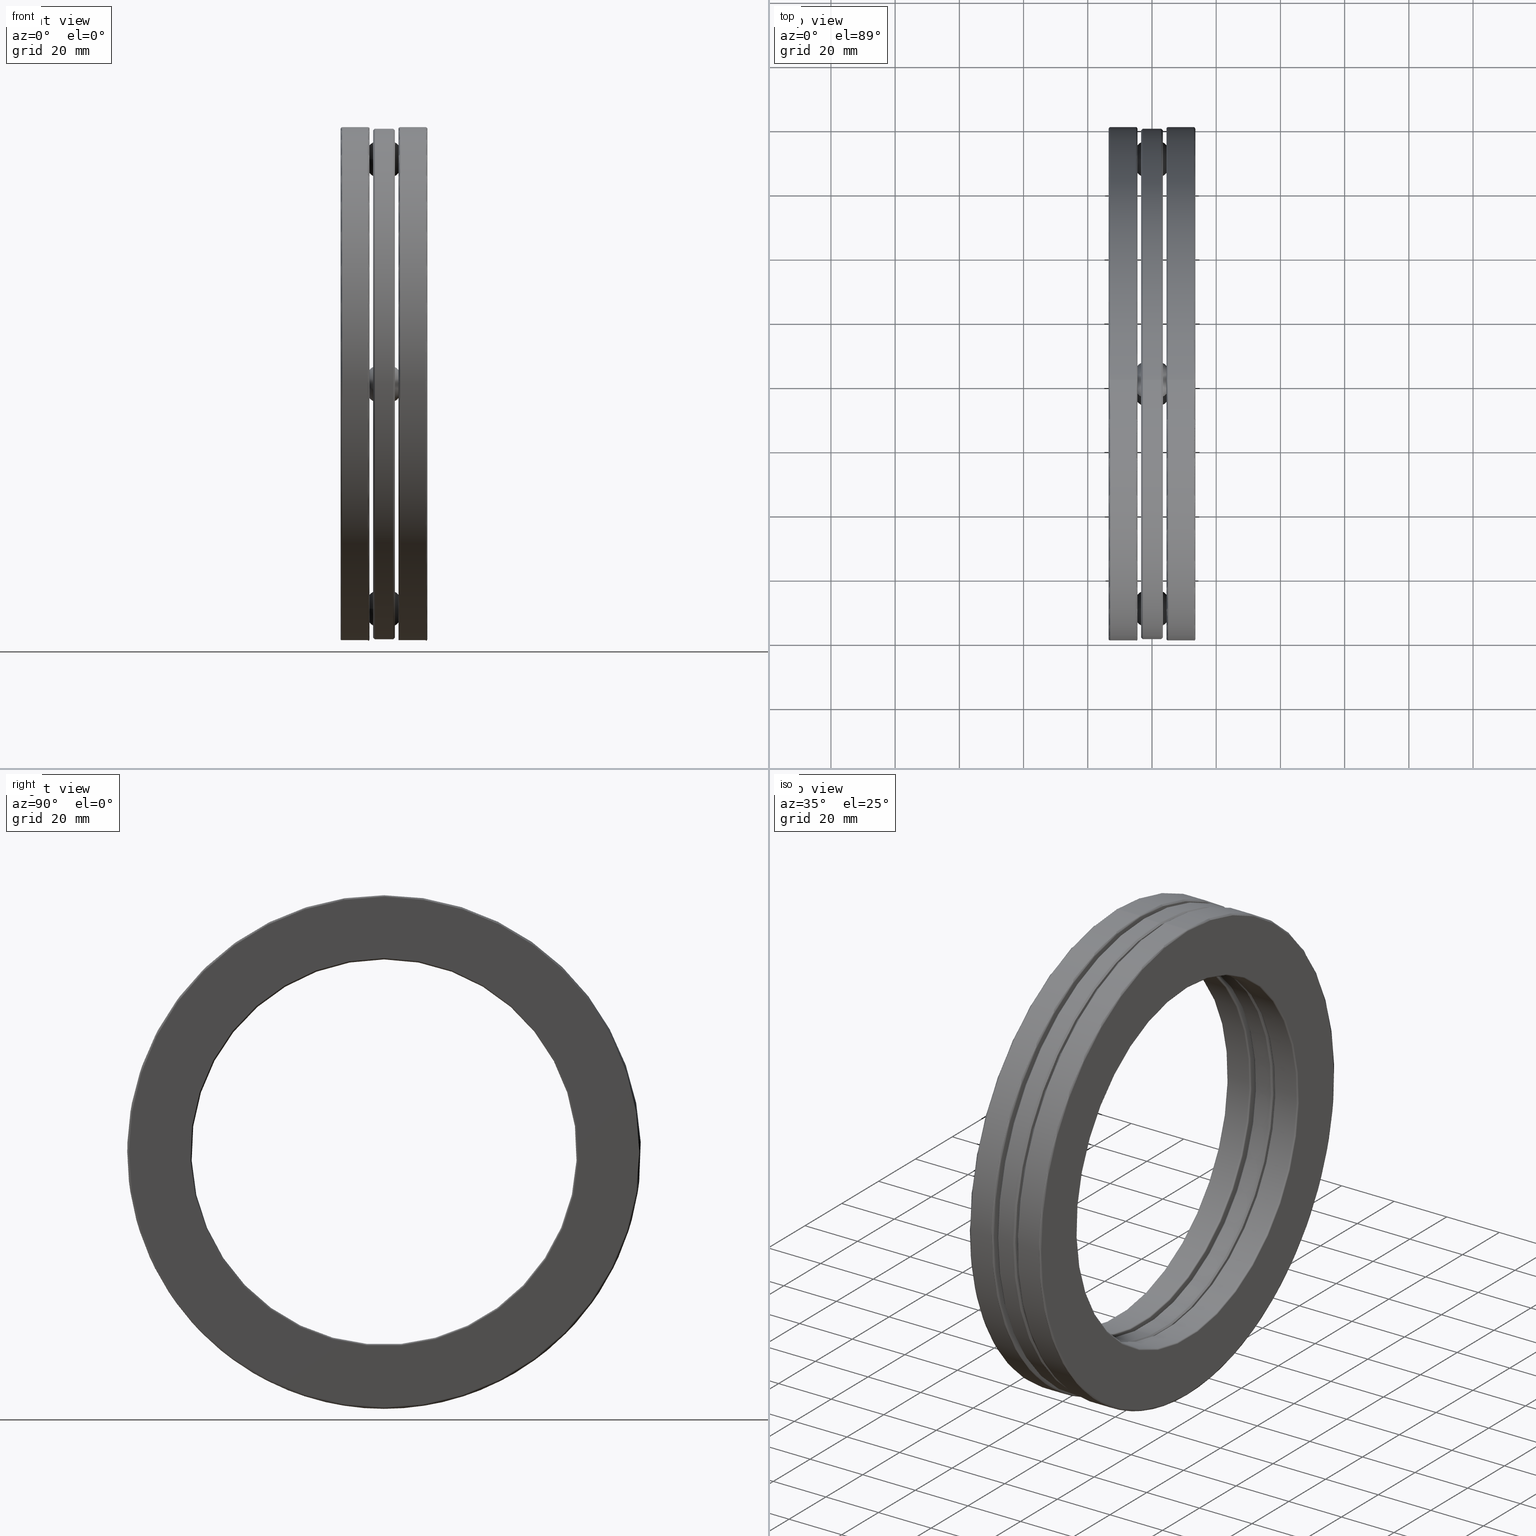
[diagram: canonical four-view strip — front | top / right | iso, engineering-drawing reading convention]
A machine part, canonical four-view strip (front | top / right | iso — engineering-drawing reading convention). The complete STEP part file that produces these views, byte-faithful:
ISO-10303-21;
HEADER;
FILE_DESCRIPTION (( 'STEP AP203' ),
    '1' );
FILE_NAME ('2924-ABB.step',
    '2017-03-07T16:43:17',
    ( '' ),
    ( '' ),
    'SwSTEP 2.0',
    'SolidWorks 2017',
    '' );
FILE_SCHEMA (( 'CONFIG_CONTROL_DESIGN' ));
ENDSEC;

DATA;
#1 = ADVANCED_FACE ( 'NONE', ( #789, #763 ), #663, .T. ) ;
#2 = DIRECTION ( 'NONE',  ( 0.0000000000000000000, 0.0000000000000000000, 1.000000000000000000 ) ) ;
#3 = AXIS2_PLACEMENT_3D ( 'NONE', #398, #583, #280 ) ;
#4 = DIRECTION ( 'NONE',  ( 0.0000000000000000000, 0.0000000000000000000, 1.000000000000000000 ) ) ;
#5 = DIRECTION ( 'NONE',  ( 0.0000000000000000000, -1.000000000000000000, 4.285251754767471100E-015 ) ) ;
#6 = EDGE_LOOP ( 'NONE', ( #730 ) ) ;
#7 = CIRCLE ( 'NONE', #71, 2.381999999999999700 ) ;
#8 = CYLINDRICAL_SURFACE ( 'NONE', #475, 0.2550000000000000600 ) ;
#9 = CARTESIAN_POINT ( 'NONE',  ( 0.1971702100000012600, 0.0000000000000000000, 0.0000000000000000000 ) ) ;
#10 = EDGE_LOOP ( 'NONE', ( #380 ) ) ;
#11 = CARTESIAN_POINT ( 'NONE',  ( -0.1328749999999998800, 2.886494909855089900E-014, 2.755750000000000400 ) ) ;
#12 = AXIS2_PLACEMENT_3D ( 'NONE', #392, #194, #202 ) ;
#13 = CARTESIAN_POINT ( 'NONE',  ( 0.0000000000000000000, 0.0000000000000000000, 0.0000000000000000000 ) ) ;
#14 = ORIENTED_EDGE ( 'NONE', *, *, #622, .F. ) ;
#15 = ORIENTED_EDGE ( 'NONE', *, *, #413, .T. ) ;
#16 = ORIENTED_EDGE ( 'NONE', *, *, #603, .T. ) ;
#17 = DATE_AND_TIME ( #285, #361 ) ;
#18 = FACE_BOUND ( 'NONE', #468, .T. ) ;
#19 = VERTEX_POINT ( 'NONE', #235 ) ;
#20 = CARTESIAN_POINT ( 'NONE',  ( -0.1771702099999997700, 0.0000000000000000000, 2.382000000000000100 ) ) ;
#21 = APPROVAL_STATUS ( 'not_yet_approved' ) ;
#22 = DIRECTION ( 'NONE',  ( -1.000000000000000000, -0.0000000000000000000, -0.0000000000000000000 ) ) ;
#23 = LOCAL_TIME ( 11, 43, 17.00000000000000000, #404 ) ;
#24 = FACE_OUTER_BOUND ( 'NONE', #300, .T. ) ;
#25 = VERTEX_POINT ( 'NONE', #531 ) ;
#26 = DATE_TIME_ROLE ( 'classification_date' ) ;
#27 = PLANE ( 'NONE',  #397 ) ;
#28 = EDGE_LOOP ( 'NONE', ( #421 ) ) ;
#29 =( GEOMETRIC_REPRESENTATION_CONTEXT ( 3 ) GLOBAL_UNCERTAINTY_ASSIGNED_CONTEXT ( ( #50 ) ) GLOBAL_UNIT_ASSIGNED_CONTEXT ( ( #589, #227, #420 ) ) REPRESENTATION_CONTEXT ( 'NONE', 'WORKASPACE' ) );
#30 = ORIENTED_EDGE ( 'NONE', *, *, #450, .T. ) ;
#31 = DIRECTION ( 'NONE',  ( 1.000000000000000000, 0.0000000000000000000, 0.0000000000000000000 ) ) ;
#32 = ADVANCED_FACE ( 'NONE', ( #338, #96 ), #165, .F. ) ;
#33 = CARTESIAN_POINT ( 'NONE',  ( -0.1971702099999997300, 0.0000000000000000000, 2.362000000000000100 ) ) ;
#34 = EDGE_CURVE ( 'NONE', #333, #333, #456, .T. ) ;
#35 = EDGE_LOOP ( 'NONE', ( #674 ) ) ;
#36 = CIRCLE ( 'NONE', #189, 2.381999999999999700 ) ;
#37 = FACE_OUTER_BOUND ( 'NONE', #355, .T. ) ;
#38 = ORIENTED_EDGE ( 'NONE', *, *, #695, .F. ) ;
#39 = ADVANCED_FACE ( 'NONE', ( #613, #481 ), #598, .T. ) ;
#40 = MANIFOLD_SOLID_BREP ( 'CirPattern7', #183 ) ;
#41 = AXIS2_PLACEMENT_3D ( 'NONE', #501, #249, #676 ) ;
#42 = CARTESIAN_POINT ( 'NONE',  ( 0.1971702100000012600, 0.0000000000000000000, 0.0000000000000000000 ) ) ;
#43 = AXIS2_PLACEMENT_3D ( 'NONE', #13, #641, #72 ) ;
#44 = DATE_AND_TIME ( #229, #744 ) ;
#45 = FACE_BOUND ( 'NONE', #122, .T. ) ;
#46 = FACE_OUTER_BOUND ( 'NONE', #111, .T. ) ;
#47 = CARTESIAN_POINT ( 'NONE',  ( 0.1771702100000012400, 0.0000000000000000000, 0.0000000000000000000 ) ) ;
#48 = ADVANCED_FACE ( 'NONE', ( #119, #315 ), #130, .F. ) ;
#49 = DIRECTION ( 'NONE',  ( 0.0000000000000000000, 0.0000000000000000000, 1.000000000000000000 ) ) ;
#50 = UNCERTAINTY_MEASURE_WITH_UNIT (LENGTH_MEASURE( 1.000000000000000100E-005 ), #589, 'distance_accuracy_value', 'NONE');
#51 = EDGE_LOOP ( 'NONE', ( #224 ) ) ;
#52 = ADVANCED_FACE ( 'NONE', ( #283, #88 ), #373, .T. ) ;
#53 = DIRECTION ( 'NONE',  ( -1.000000000000000000, -0.0000000000000000000, -0.0000000000000000000 ) ) ;
#54 = CARTESIAN_POINT ( 'NONE',  ( -0.1328749999999998800, 2.755750000000000400, 0.0000000000000000000 ) ) ;
#55 = ORIENTED_EDGE ( 'NONE', *, *, #609, .F. ) ;
#56 = CIRCLE ( 'NONE', #377, 0.2550000000000000600 ) ;
#57 = PERSON_AND_ORGANIZATION ( #247, #150 ) ;
#58 = FACE_OUTER_BOUND ( 'NONE', #773, .T. ) ;
#59 = EDGE_LOOP ( 'NONE', ( #169 ) ) ;
#60 = AXIS2_PLACEMENT_3D ( 'NONE', #378, #736, #813 ) ;
#61 = ADVANCED_FACE ( 'NONE', ( #203, #449 ), #530, .F. ) ;
#62 = DIRECTION ( 'NONE',  ( -1.000000000000000000, -0.0000000000000000000, -0.0000000000000000000 ) ) ;
#63 = EDGE_LOOP ( 'NONE', ( #157 ) ) ;
#64 = ORIENTED_EDGE ( 'NONE', *, *, #547, .F. ) ;
#65 = EDGE_CURVE ( 'NONE', #168, #168, #607, .T. ) ;
#66 = ADVANCED_FACE ( 'NONE', ( ), #242, .T. ) ;
#67 = MANIFOLD_SOLID_BREP ( 'CirPattern4[2]', #780 ) ;
#68 = FACE_OUTER_BOUND ( 'NONE', #178, .T. ) ;
#69 = CARTESIAN_POINT ( 'NONE',  ( -0.5315393700787400800, 2.755750000000000400, 0.0000000000000000000 ) ) ;
#70 = CIRCLE ( 'NONE', #502, 2.381999999999999700 ) ;
#71 = AXIS2_PLACEMENT_3D ( 'NONE', #452, #199, #627 ) ;
#72 = DIRECTION ( 'NONE',  ( 0.0000000000000000000, 0.0000000000000000000, 1.000000000000000000 ) ) ;
#73 = DIRECTION ( 'NONE',  ( 0.0000000000000000000, 0.0000000000000000000, -1.000000000000000000 ) ) ;
#74 = EDGE_LOOP ( 'NONE', ( #387 ) ) ;
#75 = FACE_OUTER_BOUND ( 'NONE', #269, .T. ) ;
#76 = CIRCLE ( 'NONE', #806, 3.129500000000000600 ) ;
#77 = AXIS2_PLACEMENT_3D ( 'NONE', #699, #139, #210 ) ;
#78 = DIRECTION ( 'NONE',  ( 0.0000000000000000000, 0.0000000000000000000, 1.000000000000000000 ) ) ;
#79 = DIRECTION ( 'NONE',  ( 0.0000000000000000000, 0.0000000000000000000, 1.000000000000000000 ) ) ;
#80 = CARTESIAN_POINT ( 'NONE',  ( 0.0000000000000000000, 0.0000000000000000000, 0.0000000000000000000 ) ) ;
#81 = CARTESIAN_POINT ( 'NONE',  ( 0.5115000000000015100, 0.0000000000000000000, 0.0000000000000000000 ) ) ;
#82 = EDGE_LOOP ( 'NONE', ( #556 ) ) ;
#83 = CARTESIAN_POINT ( 'NONE',  ( -0.1328749999999999100, 0.0000000000000000000, 2.402000000000000100 ) ) ;
#84 = AXIS2_PLACEMENT_3D ( 'NONE', #441, #53, #436 ) ;
#85 = DIRECTION ( 'NONE',  ( 0.0000000000000000000, 0.0000000000000000000, 1.000000000000000000 ) ) ;
#86 = APPROVAL_ROLE ( '' ) ;
#87 = CALENDAR_DATE ( 2017, 7, 3 ) ;
#88 = FACE_OUTER_BOUND ( 'NONE', #286, .T. ) ;
#89 = DIRECTION ( 'NONE',  ( 0.0000000000000000000, 0.0000000000000000000, 1.000000000000000000 ) ) ;
#90 = VERTEX_POINT ( 'NONE', #303 ) ;
#91 = EDGE_LOOP ( 'NONE', ( #687 ) ) ;
#92 = AXIS2_PLACEMENT_3D ( 'NONE', #81, #772, #461 ) ;
#93 = CARTESIAN_POINT ( 'NONE',  ( 0.1971702100000012600, 0.0000000000000000000, 3.149500000000000200 ) ) ;
#94 = CARTESIAN_POINT ( 'NONE',  ( 0.5115000000000015100, 0.0000000000000000000, 2.362000000000000100 ) ) ;
#95 = SECURITY_CLASSIFICATION_LEVEL ( 'unclassified' ) ;
#96 = FACE_OUTER_BOUND ( 'NONE', #795, .T. ) ;
#97 = CYLINDRICAL_SURFACE ( 'NONE', #667, 0.2550000000000000600 ) ;
#98 = CALENDAR_DATE ( 2017, 7, 3 ) ;
#99 = DESIGN_CONTEXT ( 'detailed design', #485, 'design' ) ;
#100 = CIRCLE ( 'NONE', #814, 0.2550000000000000600 ) ;
#101 = CARTESIAN_POINT ( 'NONE',  ( -0.5114999999999999500, 0.0000000000000000000, 3.149500000000001100 ) ) ;
#102 = ORIENTED_EDGE ( 'NONE', *, *, #105, .T. ) ;
#103 = AXIS2_PLACEMENT_3D ( 'NONE', #134, #263, #197 ) ;
#104 = ADVANCED_FACE ( 'NONE', ( #24, #757 ), #368, .F. ) ;
#105 = EDGE_CURVE ( 'NONE', #553, #553, #708, .T. ) ;
#106 = CC_DESIGN_DATE_AND_TIME_ASSIGNMENT ( #625, #366, ( #578 ) ) ;
#107 = CARTESIAN_POINT ( 'NONE',  ( 0.1771702100000012400, 0.0000000000000000000, 0.0000000000000000000 ) ) ;
#108 = VERTEX_POINT ( 'NONE', #596 ) ;
#109 = SPHERICAL_SURFACE ( 'NONE', #529, 0.2499999999999998100 ) ;
#110 = FACE_OUTER_BOUND ( 'NONE', #304, .T. ) ;
#111 = EDGE_LOOP ( 'NONE', ( #647 ) ) ;
#112 = EDGE_LOOP ( 'NONE', ( #259 ) ) ;
#113 = DIRECTION ( 'NONE',  ( 0.0000000000000000000, 0.0000000000000000000, -1.000000000000000000 ) ) ;
#114 = AXIS2_PLACEMENT_3D ( 'NONE', #313, #427, #376 ) ;
#115 = DIRECTION ( 'NONE',  ( -1.000000000000000000, -0.0000000000000000000, -0.0000000000000000000 ) ) ;
#116 = DIRECTION ( 'NONE',  ( -1.000000000000000000, -0.0000000000000000000, -0.0000000000000000000 ) ) ;
#117 = APPROVAL ( #543, 'UNSPECIFIED' ) ;
#118 = ADVANCED_FACE ( 'NONE', ( #491, #779 ), #296, .T. ) ;
#119 = FACE_BOUND ( 'NONE', #82, .T. ) ;
#120 = CIRCLE ( 'NONE', #604, 2.382000000000000100 ) ;
#121 = VERTEX_POINT ( 'NONE', #138 ) ;
#122 = EDGE_LOOP ( 'NONE', ( #354 ) ) ;
#123 = DIRECTION ( 'NONE',  ( 0.0000000000000000000, 1.000000000000000000, -1.071312938691867700E-014 ) ) ;
#124 = EDGE_CURVE ( 'NONE', #25, #25, #193, .T. ) ;
#125 = CC_DESIGN_PERSON_AND_ORGANIZATION_ASSIGNMENT ( #567, #593, ( #486 ) ) ;
#126 = ADVANCED_FACE ( 'NONE', ( #819, #151 ), #679, .F. ) ;
#127 = DIRECTION ( 'NONE',  ( -1.000000000000000000, -0.0000000000000000000, -0.0000000000000000000 ) ) ;
#128 = EDGE_LOOP ( 'NONE', ( #267 ) ) ;
#129 = VERTEX_POINT ( 'NONE', #661 ) ;
#130 = CONICAL_SURFACE ( 'NONE', #426, 2.402000000000000100, 0.7853981633974503900 ) ;
#131 = MANIFOLD_SOLID_BREP ( 'Revolve3', #767 ) ;
#132 = ORIENTED_EDGE ( 'NONE', *, *, #642, .F. ) ;
#133 = DIRECTION ( 'NONE',  ( 1.000000000000000000, -0.0000000000000000000, -0.0000000000000000000 ) ) ;
#134 = CARTESIAN_POINT ( 'NONE',  ( -0.1771702099999997700, 0.0000000000000000000, 0.0000000000000000000 ) ) ;
#135 = DIRECTION ( 'NONE',  ( 0.0000000000000000000, 0.0000000000000000000, 1.000000000000000000 ) ) ;
#136 = EDGE_LOOP ( 'NONE', ( #206 ) ) ;
#137 = CIRCLE ( 'NONE', #460, 3.129500000000000600 ) ;
#138 = CARTESIAN_POINT ( 'NONE',  ( 0.1771702100000012400, 0.0000000000000000000, 2.932132302651245100 ) ) ;
#139 = DIRECTION ( 'NONE',  ( -1.000000000000000000, -0.0000000000000000000, -0.0000000000000000000 ) ) ;
#140 = PRODUCT_DEFINITION_FORMATION_WITH_SPECIFIED_SOURCE ( 'ANY', '', #732, .NOT_KNOWN. ) ;
#141 = CARTESIAN_POINT ( 'NONE',  ( -0.1328749999999999100, 0.0000000000000000000, 0.0000000000000000000 ) ) ;
#142 = DIRECTION ( 'NONE',  ( 0.0000000000000000000, 0.0000000000000000000, -1.000000000000000000 ) ) ;
#143 = EDGE_LOOP ( 'NONE', ( #64 ) ) ;
#144 = DIRECTION ( 'NONE',  ( -1.000000000000000000, -0.0000000000000000000, -0.0000000000000000000 ) ) ;
#145 = ORIENTED_EDGE ( 'NONE', *, *, #173, .F. ) ;
#146 = AXIS2_PLACEMENT_3D ( 'NONE', #234, #532, #236 ) ;
#147 = DIRECTION ( 'NONE',  ( 0.0000000000000000000, 0.0000000000000000000, 1.000000000000000000 ) ) ;
#148 = DIRECTION ( 'NONE',  ( -1.000000000000000000, -0.0000000000000000000, -0.0000000000000000000 ) ) ;
#149 = EDGE_LOOP ( 'NONE', ( #817 ) ) ;
#150 = ORGANIZATION ( 'UNSPECIFIED', 'UNSPECIFIED', '' ) ;
#151 = FACE_OUTER_BOUND ( 'NONE', #558, .T. ) ;
#152 = VERTEX_POINT ( 'NONE', #724 ) ;
#153 = EDGE_CURVE ( 'NONE', #121, #121, #262, .T. ) ;
#154 = DIRECTION ( 'NONE',  ( -1.000000000000000000, -0.0000000000000000000, -0.0000000000000000000 ) ) ;
#155 = DIRECTION ( 'NONE',  ( 0.0000000000000000000, 0.0000000000000000000, 1.000000000000000000 ) ) ;
#156 = EDGE_LOOP ( 'NONE', ( #798 ) ) ;
#157 = ORIENTED_EDGE ( 'NONE', *, *, #681, .F. ) ;
#158 = CARTESIAN_POINT ( 'NONE',  ( 0.1328750000000000200, 2.755750000000000400, -0.2550000000000000600 ) ) ;
#159 = DIRECTION ( 'NONE',  ( 0.0000000000000000000, 0.0000000000000000000, 1.000000000000000000 ) ) ;
#160 = ORIENTED_EDGE ( 'NONE', *, *, #595, .T. ) ;
#161 = CARTESIAN_POINT ( 'NONE',  ( -0.1328749999999998800, -0.2550000000000097200, -2.755749999999999500 ) ) ;
#162 = MANIFOLD_SOLID_BREP ( 'Revolve1', #521 ) ;
#163 = AXIS2_PLACEMENT_3D ( 'NONE', #340, #154, #643 ) ;
#164 = CARTESIAN_POINT ( 'NONE',  ( -0.1771702099999997700, 0.0000000000000000000, 2.579367697348753800 ) ) ;
#165 = TOROIDAL_SURFACE ( 'NONE', #294, 2.755750000000000400, 0.2499999999999998100 ) ;
#166 = TOROIDAL_SURFACE ( 'NONE', #734, 2.381999999999999700, 0.01999999999999990700 ) ;
#167 = CARTESIAN_POINT ( 'NONE',  ( -0.5114999999999999500, 0.0000000000000000000, 0.0000000000000000000 ) ) ;
#168 = VERTEX_POINT ( 'NONE', #223 ) ;
#169 = ORIENTED_EDGE ( 'NONE', *, *, #494, .T. ) ;
#170 = AXIS2_PLACEMENT_3D ( 'NONE', #47, #432, #610 ) ;
#171 = APPROVAL_STATUS ( 'not_yet_approved' ) ;
#172 = ADVANCED_FACE ( 'NONE', ( #362, #18, #697, #801, #230, #671 ), #282, .T. ) ;
#173 = EDGE_CURVE ( 'NONE', #231, #231, #587, .T. ) ;
#174 = ORIENTED_EDGE ( 'NONE', *, *, #659, .T. ) ;
#175 = FACE_OUTER_BOUND ( 'NONE', #243, .T. ) ;
#176 = TOROIDAL_SURFACE ( 'NONE', #289, 3.129500000000000600, 0.01999999999999987200 ) ;
#177 = DIRECTION ( 'NONE',  ( -1.000000000000000000, -0.0000000000000000000, -0.0000000000000000000 ) ) ;
#178 = EDGE_LOOP ( 'NONE', ( #367 ) ) ;
#179 = ORIENTED_EDGE ( 'NONE', *, *, #799, .F. ) ;
#180 = CARTESIAN_POINT ( 'NONE',  ( -0.1328749999999999100, -2.244664412638657500E-017, 0.0000000000000000000 ) ) ;
#181 = EDGE_CURVE ( 'NONE', #185, #185, #429, .T. ) ;
#182 = DIRECTION ( 'NONE',  ( 0.0000000000000000000, 0.0000000000000000000, 1.000000000000000000 ) ) ;
#183 = CLOSED_SHELL ( 'NONE', ( #118, #52, #794, #172, #48, #104, #690, #375, #682, #321, #600, #186 ) ) ;
#184 = FACE_OUTER_BOUND ( 'NONE', #156, .T. ) ;
#185 = VERTEX_POINT ( 'NONE', #536 ) ;
#186 = ADVANCED_FACE ( 'NONE', ( #37, #626 ), #568, .F. ) ;
#187 = DIRECTION ( 'NONE',  ( 1.000000000000000000, 0.0000000000000000000, 0.0000000000000000000 ) ) ;
#188 = ADVANCED_FACE ( 'NONE', ( #349, #58 ), #27, .F. ) ;
#189 = AXIS2_PLACEMENT_3D ( 'NONE', #621, #694, #396 ) ;
#190 = ORIENTED_EDGE ( 'NONE', *, *, #124, .F. ) ;
#191 = ORIENTED_EDGE ( 'NONE', *, *, #216, .T. ) ;
#192 = VERTEX_POINT ( 'NONE', #33 ) ;
#193 = CIRCLE ( 'NONE', #92, 3.149500000000000200 ) ;
#194 = DIRECTION ( 'NONE',  ( -1.000000000000000000, -0.0000000000000000000, -0.0000000000000000000 ) ) ;
#195 = CYLINDRICAL_SURFACE ( 'NONE', #550, 3.129500000000000600 ) ;
#196 = MANIFOLD_SOLID_BREP ( 'CirPattern4[3]', #624 ) ;
#197 = DIRECTION ( 'NONE',  ( 0.0000000000000000000, 0.0000000000000000000, -1.000000000000000000 ) ) ;
#198 = EDGE_CURVE ( 'NONE', #438, #438, #383, .T. ) ;
#199 = DIRECTION ( 'NONE',  ( -1.000000000000000000, -0.0000000000000000000, -0.0000000000000000000 ) ) ;
#200 = DIRECTION ( 'NONE',  ( -1.000000000000000000, -0.0000000000000000000, -0.0000000000000000000 ) ) ;
#201 = ADVANCED_FACE ( 'NONE', ( #729, #561 ), #471, .F. ) ;
#202 = DIRECTION ( 'NONE',  ( 0.0000000000000000000, 0.0000000000000000000, 1.000000000000000000 ) ) ;
#203 = FACE_BOUND ( 'NONE', #63, .T. ) ;
#204 = AXIS2_PLACEMENT_3D ( 'NONE', #353, #597, #228 ) ;
#205 = FACE_OUTER_BOUND ( 'NONE', #805, .T. ) ;
#206 = ORIENTED_EDGE ( 'NONE', *, *, #216, .F. ) ;
#207 = DIRECTION ( 'NONE',  ( -1.000000000000000000, -0.0000000000000000000, -0.0000000000000000000 ) ) ;
#208 = CARTESIAN_POINT ( 'NONE',  ( 0.1328749999999999700, 0.0000000000000000000, 3.109500000000000600 ) ) ;
#209 = AXIS2_PLACEMENT_3D ( 'NONE', #180, #187, #113 ) ;
#210 = DIRECTION ( 'NONE',  ( 0.0000000000000000000, 0.0000000000000000000, 1.000000000000000000 ) ) ;
#211 = ORIENTED_EDGE ( 'NONE', *, *, #310, .T. ) ;
#212 = DIRECTION ( 'NONE',  ( -1.000000000000000000, -0.0000000000000000000, -0.0000000000000000000 ) ) ;
#213 = CARTESIAN_POINT ( 'NONE',  ( 0.5315000000000001900, 0.0000000000000000000, 0.0000000000000000000 ) ) ;
#214 = ORIENTED_EDGE ( 'NONE', *, *, #264, .F. ) ;
#215 = FACE_OUTER_BOUND ( 'NONE', #28, .T. ) ;
#216 = EDGE_CURVE ( 'NONE', #615, #615, #100, .T. ) ;
#217 = CARTESIAN_POINT ( 'NONE',  ( 0.5115000000000014000, 0.0000000000000000000, 0.0000000000000000000 ) ) ;
#218 = APPROVAL_PERSON_ORGANIZATION ( #314, #523, #535 ) ;
#219 = FACE_BOUND ( 'NONE', #112, .T. ) ;
#220 = DIRECTION ( 'NONE',  ( 0.0000000000000000000, 0.0000000000000000000, 1.000000000000000000 ) ) ;
#221 = CC_DESIGN_SECURITY_CLASSIFICATION ( #486, ( #140 ) ) ;
#222 = ORIENTED_EDGE ( 'NONE', *, *, #695, .T. ) ;
#223 = CARTESIAN_POINT ( 'NONE',  ( 0.1328750000000000200, -2.755750000000000400, 0.2550000000000000600 ) ) ;
#224 = ORIENTED_EDGE ( 'NONE', *, *, #516, .T. ) ;
#225 = AXIS2_PLACEMENT_3D ( 'NONE', #403, #709, #78 ) ;
#226 = DIRECTION ( 'NONE',  ( -1.000000000000000000, -0.0000000000000000000, -0.0000000000000000000 ) ) ;
#227 =( NAMED_UNIT ( * ) PLANE_ANGLE_UNIT ( ) SI_UNIT ( $, .RADIAN. ) );
#228 = DIRECTION ( 'NONE',  ( 0.0000000000000000000, 0.0000000000000000000, -1.000000000000000000 ) ) ;
#229 = CALENDAR_DATE ( 2017, 7, 3 ) ;
#230 = FACE_BOUND ( 'NONE', #711, .T. ) ;
#231 = VERTEX_POINT ( 'NONE', #208 ) ;
#232 = EDGE_CURVE ( 'NONE', #639, #639, #272, .T. ) ;
#233 = CARTESIAN_POINT ( 'NONE',  ( -0.1328749999999998800, 2.755750000000000400, -0.2550000000000000600 ) ) ;
#234 = CARTESIAN_POINT ( 'NONE',  ( -0.1771702099999997700, 0.0000000000000000000, 0.0000000000000000000 ) ) ;
#235 = CARTESIAN_POINT ( 'NONE',  ( -0.1771702099999997700, 0.0000000000000000000, 3.129500000000000600 ) ) ;
#236 = DIRECTION ( 'NONE',  ( 0.0000000000000000000, 0.0000000000000000000, 1.000000000000000000 ) ) ;
#237 = EDGE_LOOP ( 'NONE', ( #190 ) ) ;
#238 = CARTESIAN_POINT ( 'NONE',  ( -0.1328750000000000200, 0.0000000000000000000, 3.109500000000000600 ) ) ;
#239 = ORIENTED_EDGE ( 'NONE', *, *, #232, .T. ) ;
#240 = FACE_OUTER_BOUND ( 'NONE', #797, .T. ) ;
#241 = PERSON_AND_ORGANIZATION ( #247, #150 ) ;
#242 = SPHERICAL_SURFACE ( 'NONE', #3, 0.2499999999999998100 ) ;
#243 = EDGE_LOOP ( 'NONE', ( #250 ) ) ;
#244 = AXIS2_PLACEMENT_3D ( 'NONE', #342, #770, #411 ) ;
#245 = ORIENTED_EDGE ( 'NONE', *, *, #547, .T. ) ;
#246 = ORIENTED_EDGE ( 'NONE', *, *, #248, .T. ) ;
#247 = PERSON ( 'UNSPECIFIED', 'UNSPECIFIED', 'UNSPECIFIED', ('UNSPECIFIED'), ('UNSPECIFIED'), ('UNSPECIFIED') ) ;
#248 = EDGE_CURVE ( 'NONE', #809, #809, #76, .T. ) ;
#249 = DIRECTION ( 'NONE',  ( -1.000000000000000000, -0.0000000000000000000, -0.0000000000000000000 ) ) ;
#250 = ORIENTED_EDGE ( 'NONE', *, *, #310, .F. ) ;
#251 = LENGTH_MEASURE_WITH_UNIT ( LENGTH_MEASURE( 0.02539999999999999900 ), #279 );
#252 = CIRCLE ( 'NONE', #146, 2.932132302651246900 ) ;
#253 = CIRCLE ( 'NONE', #163, 0.2550000000000000600 ) ;
#254 = DIRECTION ( 'NONE',  ( -1.000000000000000000, -0.0000000000000000000, -0.0000000000000000000 ) ) ;
#255 = AXIS2_PLACEMENT_3D ( 'NONE', #549, #22, #718 ) ;
#256 = ADVANCED_FACE ( 'NONE', ( ), #109, .T. ) ;
#257 = DIRECTION ( 'NONE',  ( 0.0000000000000000000, 0.0000000000000000000, 1.000000000000000000 ) ) ;
#258 = CC_DESIGN_APPROVAL ( #117, ( #578 ) ) ;
#259 = ORIENTED_EDGE ( 'NONE', *, *, #740, .F. ) ;
#260 = CIRCLE ( 'NONE', #822, 3.129500000000000600 ) ;
#261 = APPROVAL_DATE_TIME ( #44, #523 ) ;
#262 = CIRCLE ( 'NONE', #346, 2.932132302651245100 ) ;
#263 = DIRECTION ( 'NONE',  ( 1.000000000000000000, 0.0000000000000000000, 0.0000000000000000000 ) ) ;
#264 = EDGE_CURVE ( 'NONE', #680, #680, #416, .T. ) ;
#265 = CARTESIAN_POINT ( 'NONE',  ( 0.1328750000000000800, 0.0000000000000000000, 0.0000000000000000000 ) ) ;
#266 = ORIENTED_EDGE ( 'NONE', *, *, #320, .T. ) ;
#267 = ORIENTED_EDGE ( 'NONE', *, *, #435, .T. ) ;
#268 = DIRECTION ( 'NONE',  ( 1.000000000000000000, 0.0000000000000000000, 0.0000000000000000000 ) ) ;
#269 = EDGE_LOOP ( 'NONE', ( #675 ) ) ;
#270 = DIRECTION ( 'NONE',  ( 1.000000000000000000, 0.0000000000000000000, 0.0000000000000000000 ) ) ;
#271 = AXIS2_PLACEMENT_3D ( 'NONE', #815, #268, #566 ) ;
#272 = CIRCLE ( 'NONE', #444, 3.129500000000000600 ) ;
#273 = VERTEX_POINT ( 'NONE', #164 ) ;
#274 = DIRECTION ( 'NONE',  ( 1.000000000000000000, 0.0000000000000000000, 0.0000000000000000000 ) ) ;
#275 = CARTESIAN_POINT ( 'NONE',  ( -0.5315393700787400800, -2.755750000000000400, 0.0000000000000000000 ) ) ;
#276 = AXIS2_PLACEMENT_3D ( 'NONE', #213, #453, #135 ) ;
#277 = CARTESIAN_POINT ( 'NONE',  ( 0.1771702100000012400, 0.0000000000000000000, 0.0000000000000000000 ) ) ;
#278 = EDGE_LOOP ( 'NONE', ( #323 ) ) ;
#279 =( LENGTH_UNIT ( ) NAMED_UNIT ( * ) SI_UNIT ( $, .METRE. ) );
#280 = DIRECTION ( 'NONE',  ( -1.000000000000000000, 0.0000000000000000000, 0.0000000000000000000 ) ) ;
#281 = DIRECTION ( 'NONE',  ( 0.0000000000000000000, -1.000000000000000000, 2.142625877383735500E-015 ) ) ;
#282 = PLANE ( 'NONE',  #507 ) ;
#283 = FACE_BOUND ( 'NONE', #506, .T. ) ;
#284 = FACE_OUTER_BOUND ( 'NONE', #447, .T. ) ;
#285 = CALENDAR_DATE ( 2017, 7, 3 ) ;
#286 = EDGE_LOOP ( 'NONE', ( #749 ) ) ;
#287 = DIRECTION ( 'NONE',  ( 0.0000000000000000000, 0.0000000000000000000, 1.000000000000000000 ) ) ;
#288 = EDGE_LOOP ( 'NONE', ( #700 ) ) ;
#289 = AXIS2_PLACEMENT_3D ( 'NONE', #640, #144, #344 ) ;
#290 = CARTESIAN_POINT ( 'NONE',  ( -0.5314999999999999700, 0.0000000000000000000, 0.0000000000000000000 ) ) ;
#291 = ORIENTED_EDGE ( 'NONE', *, *, #124, .T. ) ;
#292 = DIRECTION ( 'NONE',  ( 0.0000000000000000000, 0.0000000000000000000, 1.000000000000000000 ) ) ;
#293 = CARTESIAN_POINT ( 'NONE',  ( 0.1328750000000000200, 2.755750000000000400, 0.0000000000000000000 ) ) ;
#294 = AXIS2_PLACEMENT_3D ( 'NONE', #390, #634, #511 ) ;
#295 = PERSON_AND_ORGANIZATION_ROLE ( 'design_supplier' ) ;
#296 = CONICAL_SURFACE ( 'NONE', #684, 3.109500000000000600, 0.7853981633974427300 ) ;
#297 = FACE_BOUND ( 'NONE', #401, .T. ) ;
#298 = CC_DESIGN_PERSON_AND_ORGANIZATION_ASSIGNMENT ( #586, #793, ( #578 ) ) ;
#299 = CARTESIAN_POINT ( 'NONE',  ( -0.1128749999999999500, 0.0000000000000000000, 2.381999999999999700 ) ) ;
#300 = EDGE_LOOP ( 'NONE', ( #55 ) ) ;
#301 = EDGE_LOOP ( 'NONE', ( #388 ) ) ;
#302 = CARTESIAN_POINT ( 'NONE',  ( 1.728263748555720700E-016, 2.755750000000000400, 0.0000000000000000000 ) ) ;
#303 = CARTESIAN_POINT ( 'NONE',  ( -0.1971702099999997300, 0.0000000000000000000, 3.149500000000000200 ) ) ;
#304 = EDGE_LOOP ( 'NONE', ( #16 ) ) ;
#305 = FACE_BOUND ( 'NONE', #439, .T. ) ;
#306 = VERTEX_POINT ( 'NONE', #20 ) ;
#307 = ORIENTED_EDGE ( 'NONE', *, *, #384, .T. ) ;
#308 = AXIS2_PLACEMENT_3D ( 'NONE', #557, #372, #257 ) ;
#309 = ADVANCED_FACE ( 'NONE', ( #405, #546 ), #419, .T. ) ;
#310 = EDGE_CURVE ( 'NONE', #570, #570, #738, .T. ) ;
#311 = ORIENTED_EDGE ( 'NONE', *, *, #232, .F. ) ;
#312 = EDGE_LOOP ( 'NONE', ( #145 ) ) ;
#313 = CARTESIAN_POINT ( 'NONE',  ( 1.728263748555720700E-016, 2.886494909855089900E-014, 2.755750000000000400 ) ) ;
#314 = PERSON_AND_ORGANIZATION ( #247, #150 ) ;
#315 = FACE_OUTER_BOUND ( 'NONE', #10, .T. ) ;
#316 = VERTEX_POINT ( 'NONE', #414 ) ;
#317 = AXIS2_PLACEMENT_3D ( 'NONE', #141, #212, #287 ) ;
#318 = DIRECTION ( 'NONE',  ( 0.0000000000000000000, 0.0000000000000000000, -1.000000000000000000 ) ) ;
#319 = EDGE_LOOP ( 'NONE', ( #762 ) ) ;
#320 = EDGE_CURVE ( 'NONE', #457, #457, #252, .T. ) ;
#321 = ADVANCED_FACE ( 'NONE', ( #745, #688 ), #513, .F. ) ;
#322 = DIRECTION ( 'NONE',  ( -1.000000000000000000, -0.0000000000000000000, -0.0000000000000000000 ) ) ;
#323 = ORIENTED_EDGE ( 'NONE', *, *, #582, .T. ) ;
#324 = CIRCLE ( 'NONE', #343, 3.109500000000000600 ) ;
#325 = VERTEX_POINT ( 'NONE', #93 ) ;
#326 = PLANE ( 'NONE',  #103 ) ;
#327 = AXIS2_PLACEMENT_3D ( 'NONE', #649, #635, #399 ) ;
#328 = CARTESIAN_POINT ( 'NONE',  ( 0.1971702100000012600, 0.0000000000000000000, 0.0000000000000000000 ) ) ;
#329 = EDGE_LOOP ( 'NONE', ( #619 ) ) ;
#330 = DIRECTION ( 'NONE',  ( 0.0000000000000000000, 0.0000000000000000000, 1.000000000000000000 ) ) ;
#331 = FACE_BOUND ( 'NONE', #334, .T. ) ;
#332 = ADVANCED_FACE ( 'NONE', ( #68, #509 ), #716, .T. ) ;
#333 = VERTEX_POINT ( 'NONE', #573 ) ;
#334 = EDGE_LOOP ( 'NONE', ( #605 ) ) ;
#335 = ADVANCED_FACE ( 'NONE', ( ), #527, .T. ) ;
#336 = DIRECTION ( 'NONE',  ( -1.000000000000000000, -0.0000000000000000000, -0.0000000000000000000 ) ) ;
#337 = EDGE_LOOP ( 'NONE', ( #347 ) ) ;
#338 = FACE_OUTER_BOUND ( 'NONE', #575, .T. ) ;
#339 = CIRCLE ( 'NONE', #308, 2.579367697348753800 ) ;
#340 = CARTESIAN_POINT ( 'NONE',  ( -0.1328749999999998800, -2.755750000000000400, 0.0000000000000000000 ) ) ;
#341 = FACE_OUTER_BOUND ( 'NONE', #792, .T. ) ;
#342 = CARTESIAN_POINT ( 'NONE',  ( -0.1971702099999997300, 0.0000000000000000000, 0.0000000000000000000 ) ) ;
#343 = AXIS2_PLACEMENT_3D ( 'NONE', #443, #336, #820 ) ;
#344 = DIRECTION ( 'NONE',  ( 0.0000000000000000000, 0.0000000000000000000, 1.000000000000000000 ) ) ;
#345 = DIRECTION ( 'NONE',  ( -1.000000000000000000, -0.0000000000000000000, -0.0000000000000000000 ) ) ;
#346 = AXIS2_PLACEMENT_3D ( 'NONE', #277, #400, #464 ) ;
#347 = ORIENTED_EDGE ( 'NONE', *, *, #478, .F. ) ;
#348 = PERSON_AND_ORGANIZATION ( #247, #150 ) ;
#349 = FACE_BOUND ( 'NONE', #710, .T. ) ;
#350 = ORIENTED_EDGE ( 'NONE', *, *, #636, .T. ) ;
#351 = CIRCLE ( 'NONE', #357, 0.2550000000000000600 ) ;
#352 = DIRECTION ( 'NONE',  ( -1.000000000000000000, -0.0000000000000000000, -0.0000000000000000000 ) ) ;
#353 = CARTESIAN_POINT ( 'NONE',  ( -0.1771702099999997700, 0.0000000000000000000, 0.0000000000000000000 ) ) ;
#354 = ORIENTED_EDGE ( 'NONE', *, *, #105, .F. ) ;
#355 = EDGE_LOOP ( 'NONE', ( #160 ) ) ;
#356 = CARTESIAN_POINT ( 'NONE',  ( -0.1771702099999997700, 0.0000000000000000000, 2.932132302651246900 ) ) ;
#357 = AXIS2_PLACEMENT_3D ( 'NONE', #518, #524, #281 ) ;
#358 = CARTESIAN_POINT ( 'NONE',  ( -0.5314999999999999700, 0.0000000000000000000, 3.129500000000000600 ) ) ;
#359 = AXIS2_PLACEMENT_3D ( 'NONE', #412, #177, #656 ) ;
#360 = CARTESIAN_POINT ( 'NONE',  ( 0.1971702100000012600, 0.0000000000000000000, 2.362000000000000100 ) ) ;
#361 = LOCAL_TIME ( 11, 43, 17.00000000000000000, #800 ) ;
#362 = FACE_BOUND ( 'NONE', #329, .T. ) ;
#363 = CARTESIAN_POINT ( 'NONE',  ( -0.1128750000000000200, 0.0000000000000000000, 0.0000000000000000000 ) ) ;
#364 = FACE_OUTER_BOUND ( 'NONE', #489, .T. ) ;
#365 = CARTESIAN_POINT ( 'NONE',  ( 0.0000000000000000000, 0.0000000000000000000, 0.0000000000000000000 ) ) ;
#366 = DATE_TIME_ROLE ( 'creation_date' ) ;
#367 = ORIENTED_EDGE ( 'NONE', *, *, #659, .F. ) ;
#368 = CYLINDRICAL_SURFACE ( 'NONE', #43, 2.381999999999999700 ) ;
#369 = AXIS2_PLACEMENT_3D ( 'NONE', #611, #116, #49 ) ;
#370 = VERTEX_POINT ( 'NONE', #299 ) ;
#371 = AXIS2_PLACEMENT_3D ( 'NONE', #522, #704, #409 ) ;
#372 = DIRECTION ( 'NONE',  ( -1.000000000000000000, -0.0000000000000000000, -0.0000000000000000000 ) ) ;
#373 = CONICAL_SURFACE ( 'NONE', #722, 3.129500000000000600, 0.7853981633974427300 ) ;
#374 = FACE_BOUND ( 'NONE', #544, .T. ) ;
#375 = ADVANCED_FACE ( 'NONE', ( #331, #219, #552, #394, #45, #537 ), #783, .F. ) ;
#376 = DIRECTION ( 'NONE',  ( -1.000000000000000000, 0.0000000000000000000, 0.0000000000000000000 ) ) ;
#377 = AXIS2_PLACEMENT_3D ( 'NONE', #804, #612, #123 ) ;
#378 = CARTESIAN_POINT ( 'NONE',  ( 1.728263748555720700E-016, -2.755750000000000400, 0.0000000000000000000 ) ) ;
#379 = CARTESIAN_POINT ( 'NONE',  ( 0.1771702100000012400, 0.0000000000000000000, 0.0000000000000000000 ) ) ;
#380 = ORIENTED_EDGE ( 'NONE', *, *, #198, .F. ) ;
#381 = CIRCLE ( 'NONE', #271, 0.2550000000000000600 ) ;
#382 = APPROVAL_DATE_TIME ( #551, #440 ) ;
#383 = CIRCLE ( 'NONE', #359, 2.402000000000000100 ) ;
#384 = EDGE_CURVE ( 'NONE', #19, #19, #577, .T. ) ;
#385 = DIRECTION ( 'NONE',  ( 0.0000000000000000000, 0.0000000000000000000, -1.000000000000000000 ) ) ;
#386 = EDGE_LOOP ( 'NONE', ( #648 ) ) ;
#387 = ORIENTED_EDGE ( 'NONE', *, *, #320, .F. ) ;
#388 = ORIENTED_EDGE ( 'NONE', *, *, #622, .T. ) ;
#389 = CARTESIAN_POINT ( 'NONE',  ( 0.1971702100000012600, 0.0000000000000000000, 0.0000000000000000000 ) ) ;
#390 = CARTESIAN_POINT ( 'NONE',  ( 1.728263748555720700E-016, 0.0000000000000000000, 0.0000000000000000000 ) ) ;
#391 = AXIS2_PLACEMENT_3D ( 'NONE', #217, #352, #466 ) ;
#392 = CARTESIAN_POINT ( 'NONE',  ( -0.1971702099999997300, 0.0000000000000000000, 0.0000000000000000000 ) ) ;
#393 = APPROVAL_PERSON_ORGANIZATION ( #241, #117, #418 ) ;
#394 = FACE_BOUND ( 'NONE', #143, .T. ) ;
#395 = TOROIDAL_SURFACE ( 'NONE', #391, 2.381999999999999700, 0.01999999999999927500 ) ;
#396 = DIRECTION ( 'NONE',  ( 0.0000000000000000000, 0.0000000000000000000, 1.000000000000000000 ) ) ;
#397 = AXIS2_PLACEMENT_3D ( 'NONE', #480, #538, #542 ) ;
#398 = CARTESIAN_POINT ( 'NONE',  ( 1.728263748555720700E-016, -9.621649699516966800E-015, -2.755750000000000400 ) ) ;
#399 = DIRECTION ( 'NONE',  ( 0.0000000000000000000, 0.0000000000000000000, -1.000000000000000000 ) ) ;
#400 = DIRECTION ( 'NONE',  ( -1.000000000000000000, -0.0000000000000000000, -0.0000000000000000000 ) ) ;
#401 = EDGE_LOOP ( 'NONE', ( #637 ) ) ;
#402 = CYLINDRICAL_SURFACE ( 'NONE', #677, 3.149500000000001100 ) ;
#403 = CARTESIAN_POINT ( 'NONE',  ( 0.0000000000000000000, 0.0000000000000000000, 0.0000000000000000000 ) ) ;
#404 = COORDINATED_UNIVERSAL_TIME_OFFSET ( 5, 0, .BEHIND. ) ;
#405 = FACE_BOUND ( 'NONE', #59, .T. ) ;
#406 = ORIENTED_EDGE ( 'NONE', *, *, #65, .F. ) ;
#407 = DIRECTION ( 'NONE',  ( -1.000000000000000000, -0.0000000000000000000, -0.0000000000000000000 ) ) ;
#408 = AXIS2_PLACEMENT_3D ( 'NONE', #415, #735, #89 ) ;
#409 = DIRECTION ( 'NONE',  ( 0.0000000000000000000, 0.0000000000000000000, 1.000000000000000000 ) ) ;
#410 = EDGE_LOOP ( 'NONE', ( #495 ) ) ;
#411 = DIRECTION ( 'NONE',  ( 0.0000000000000000000, 0.0000000000000000000, 1.000000000000000000 ) ) ;
#412 = CARTESIAN_POINT ( 'NONE',  ( 0.1328750000000000800, 0.0000000000000000000, 0.0000000000000000000 ) ) ;
#413 = EDGE_CURVE ( 'NONE', #325, #325, #651, .T. ) ;
#414 = CARTESIAN_POINT ( 'NONE',  ( 0.1771702100000012400, 0.0000000000000000000, 2.579367697348755200 ) ) ;
#415 = CARTESIAN_POINT ( 'NONE',  ( 1.728263748555720700E-016, 0.0000000000000000000, 0.0000000000000000000 ) ) ;
#416 = CIRCLE ( 'NONE', #488, 3.149500000000001100 ) ;
#417 = FACE_OUTER_BOUND ( 'NONE', #824, .T. ) ;
#418 = APPROVAL_ROLE ( '' ) ;
#419 = PLANE ( 'NONE',  #204 ) ;
#420 =( NAMED_UNIT ( * ) SI_UNIT ( $, .STERADIAN. ) SOLID_ANGLE_UNIT ( ) );
#421 = ORIENTED_EDGE ( 'NONE', *, *, #740, .T. ) ;
#422 = APPLICATION_CONTEXT ( 'configuration controlled 3d designs of mechanical parts and assemblies' ) ;
#423 = EDGE_LOOP ( 'NONE', ( #526 ) ) ;
#424 = TOROIDAL_SURFACE ( 'NONE', #748, 3.129500000000000600, 0.01999999999999990700 ) ;
#425 = ADVANCED_FACE ( 'NONE', ( #184, #175 ), #482, .T. ) ;
#426 = AXIS2_PLACEMENT_3D ( 'NONE', #265, #274, #385 ) ;
#427 = DIRECTION ( 'NONE',  ( 0.0000000000000000000, -1.000000000000000000, 1.047444401652939800E-014 ) ) ;
#428 = DATE_AND_TIME ( #98, #490 ) ;
#429 = CIRCLE ( 'NONE', #276, 3.129500000000000600 ) ;
#430 = AXIS2_PLACEMENT_3D ( 'NONE', #11, #520, #645 ) ;
#431 = VERTEX_POINT ( 'NONE', #238 ) ;
#432 = DIRECTION ( 'NONE',  ( 1.000000000000000000, 0.0000000000000000000, 0.0000000000000000000 ) ) ;
#433 = DIRECTION ( 'NONE',  ( 0.0000000000000000000, 0.0000000000000000000, 1.000000000000000000 ) ) ;
#434 = EDGE_LOOP ( 'NONE', ( #462 ) ) ;
#435 = EDGE_CURVE ( 'NONE', #370, #370, #764, .T. ) ;
#436 = DIRECTION ( 'NONE',  ( 0.0000000000000000000, 0.0000000000000000000, 1.000000000000000000 ) ) ;
#437 = FACE_OUTER_BOUND ( 'NONE', #498, .T. ) ;
#438 = VERTEX_POINT ( 'NONE', #723 ) ;
#439 = EDGE_LOOP ( 'NONE', ( #668 ) ) ;
#440 = APPROVAL ( #21, 'UNSPECIFIED' ) ;
#441 = CARTESIAN_POINT ( 'NONE',  ( 0.1771702100000012400, 0.0000000000000000000, 0.0000000000000000000 ) ) ;
#442 = DIRECTION ( 'NONE',  ( -1.000000000000000000, -0.0000000000000000000, -0.0000000000000000000 ) ) ;
#443 = CARTESIAN_POINT ( 'NONE',  ( -0.1328750000000000200, 0.0000000000000000000, 0.0000000000000000000 ) ) ;
#444 = AXIS2_PLACEMENT_3D ( 'NONE', #363, #493, #159 ) ;
#445 = DIRECTION ( 'NONE',  ( 0.0000000000000000000, 0.0000000000000000000, 1.000000000000000000 ) ) ;
#446 = DIRECTION ( 'NONE',  ( 0.0000000000000000000, 0.0000000000000000000, 1.000000000000000000 ) ) ;
#447 = EDGE_LOOP ( 'NONE', ( #15 ) ) ;
#448 = VERTEX_POINT ( 'NONE', #360 ) ;
#449 = FACE_OUTER_BOUND ( 'NONE', #623, .T. ) ;
#450 = EDGE_CURVE ( 'NONE', #316, #316, #790, .T. ) ;
#451 = ADVANCED_FACE ( 'NONE', ( #305, #599 ), #496, .F. ) ;
#452 = CARTESIAN_POINT ( 'NONE',  ( 0.1128750000000000900, 0.0000000000000000000, 0.0000000000000000000 ) ) ;
#453 = DIRECTION ( 'NONE',  ( -1.000000000000000000, -0.0000000000000000000, -0.0000000000000000000 ) ) ;
#454 = DIRECTION ( 'NONE',  ( -1.000000000000000000, -0.0000000000000000000, -0.0000000000000000000 ) ) ;
#455 = DIRECTION ( 'NONE',  ( 0.0000000000000000000, 0.0000000000000000000, -1.000000000000000000 ) ) ;
#456 = CIRCLE ( 'NONE', #761, 2.381999999999999700 ) ;
#457 = VERTEX_POINT ( 'NONE', #356 ) ;
#458 = EDGE_LOOP ( 'NONE', ( #102 ) ) ;
#459 = DIRECTION ( 'NONE',  ( 0.0000000000000000000, 0.0000000000000000000, 1.000000000000000000 ) ) ;
#460 = AXIS2_PLACEMENT_3D ( 'NONE', #633, #686, #2 ) ;
#461 = DIRECTION ( 'NONE',  ( 0.0000000000000000000, 0.0000000000000000000, 1.000000000000000000 ) ) ;
#462 = ORIENTED_EDGE ( 'NONE', *, *, #384, .F. ) ;
#463 = CARTESIAN_POINT ( 'NONE',  ( 0.0000000000000000000, 0.0000000000000000000, 0.0000000000000000000 ) ) ;
#464 = DIRECTION ( 'NONE',  ( 0.0000000000000000000, 0.0000000000000000000, 1.000000000000000000 ) ) ;
#465 = EDGE_LOOP ( 'NONE', ( #191 ) ) ;
#466 = DIRECTION ( 'NONE',  ( 0.0000000000000000000, 0.0000000000000000000, 1.000000000000000000 ) ) ;
#467 = CARTESIAN_POINT ( 'NONE',  ( -0.1328749999999999100, 0.0000000000000000000, 0.0000000000000000000 ) ) ;
#468 = EDGE_LOOP ( 'NONE', ( #406 ) ) ;
#469 = ORIENTED_EDGE ( 'NONE', *, *, #153, .F. ) ;
#470 = APPROVAL_PERSON_ORGANIZATION ( #728, #440, #86 ) ;
#471 = TOROIDAL_SURFACE ( 'NONE', #408, 2.755750000000000400, 0.2499999999999999200 ) ;
#472 = DIRECTION ( 'NONE',  ( 0.0000000000000000000, 0.0000000000000000000, 1.000000000000000000 ) ) ;
#473 = FACE_OUTER_BOUND ( 'NONE', #6, .T. ) ;
#474 = CARTESIAN_POINT ( 'NONE',  ( 0.1128750000000000900, 0.0000000000000000000, 2.381999999999999700 ) ) ;
#475 = AXIS2_PLACEMENT_3D ( 'NONE', #69, #133, #505 ) ;
#476 = MECHANICAL_CONTEXT ( 'NONE', #422, 'mechanical' ) ;
#477 = DIRECTION ( 'NONE',  ( -1.000000000000000000, -0.0000000000000000000, -0.0000000000000000000 ) ) ;
#478 = EDGE_CURVE ( 'NONE', #273, #273, #339, .T. ) ;
#479 = CARTESIAN_POINT ( 'NONE',  ( 0.1128749999999999500, 0.0000000000000000000, 3.129500000000000600 ) ) ;
#480 = CARTESIAN_POINT ( 'NONE',  ( 0.1771702100000012400, 0.0000000000000000000, 0.0000000000000000000 ) ) ;
#481 = FACE_OUTER_BOUND ( 'NONE', #616, .T. ) ;
#482 = TOROIDAL_SURFACE ( 'NONE', #369, 2.381999999999999700, 0.02000000000000016300 ) ;
#483 = VERTEX_POINT ( 'NONE', #714 ) ;
#484 = PERSON_AND_ORGANIZATION_ROLE ( 'creator' ) ;
#485 = APPLICATION_CONTEXT ( 'configuration controlled 3d designs of mechanical parts and assemblies' ) ;
#486 = SECURITY_CLASSIFICATION ( '', '', #95 ) ;
#487 = ADVANCED_BREP_SHAPE_REPRESENTATION ( '2924-ABB', ( #162, #131, #657, #592, #67, #196, #40, #631 ), #29 ) ;
#488 = AXIS2_PLACEMENT_3D ( 'NONE', #167, #226, #653 ) ;
#489 = EDGE_LOOP ( 'NONE', ( #132 ) ) ;
#490 = LOCAL_TIME ( 11, 43, 17.00000000000000000, #707 ) ;
#491 = FACE_OUTER_BOUND ( 'NONE', #533, .T. ) ;
#492 = CYLINDRICAL_SURFACE ( 'NONE', #225, 2.362000000000000100 ) ;
#493 = DIRECTION ( 'NONE',  ( -1.000000000000000000, -0.0000000000000000000, -0.0000000000000000000 ) ) ;
#494 = EDGE_CURVE ( 'NONE', #306, #306, #120, .T. ) ;
#495 = ORIENTED_EDGE ( 'NONE', *, *, #636, .F. ) ;
#496 = PLANE ( 'NONE',  #170 ) ;
#497 = CARTESIAN_POINT ( 'NONE',  ( 0.0000000000000000000, 0.0000000000000000000, 0.0000000000000000000 ) ) ;
#498 = EDGE_LOOP ( 'NONE', ( #350 ) ) ;
#499 = CC_DESIGN_APPROVAL ( #523, ( #486 ) ) ;
#500 = CIRCLE ( 'NONE', #430, 0.2550000000000000600 ) ;
#501 = CARTESIAN_POINT ( 'NONE',  ( -0.1128749999999999500, 0.0000000000000000000, 0.0000000000000000000 ) ) ;
#502 = AXIS2_PLACEMENT_3D ( 'NONE', #564, #207, #702 ) ;
#503 = DIRECTION ( 'NONE',  ( -1.000000000000000000, -0.0000000000000000000, -0.0000000000000000000 ) ) ;
#504 = ADVANCED_FACE ( 'NONE', ( #240, #437 ), #402, .T. ) ;
#505 = DIRECTION ( 'NONE',  ( 0.0000000000000000000, 0.0000000000000000000, -1.000000000000000000 ) ) ;
#506 = EDGE_LOOP ( 'NONE', ( #742 ) ) ;
#507 = AXIS2_PLACEMENT_3D ( 'NONE', #517, #574, #455 ) ;
#508 = CARTESIAN_POINT ( 'NONE',  ( 0.1128749999999999500, 0.0000000000000000000, 0.0000000000000000000 ) ) ;
#509 = FACE_OUTER_BOUND ( 'NONE', #35, .T. ) ;
#510 = FACE_OUTER_BOUND ( 'NONE', #705, .T. ) ;
#511 = DIRECTION ( 'NONE',  ( 0.0000000000000000000, 0.0000000000000000000, 1.000000000000000000 ) ) ;
#512 = AXIS2_PLACEMENT_3D ( 'NONE', #9, #454, #775 ) ;
#513 = CYLINDRICAL_SURFACE ( 'NONE', #693, 0.2550000000000000600 ) ;
#514 = DIRECTION ( 'NONE',  ( 0.0000000000000000000, 0.0000000000000000000, 1.000000000000000000 ) ) ;
#515 = SHAPE_DEFINITION_REPRESENTATION ( #771, #487 ) ;
#516 = EDGE_CURVE ( 'NONE', #588, #588, #56, .T. ) ;
#517 = CARTESIAN_POINT ( 'NONE',  ( 0.1328750000000000200, 1.923998067976005200E-017, 0.0000000000000000000 ) ) ;
#518 = CARTESIAN_POINT ( 'NONE',  ( -0.1328749999999998800, -9.621649699516966800E-015, -2.755750000000000400 ) ) ;
#519 = DIRECTION ( 'NONE',  ( 1.000000000000000000, 0.0000000000000000000, 0.0000000000000000000 ) ) ;
#520 = DIRECTION ( 'NONE',  ( -1.000000000000000000, -0.0000000000000000000, -0.0000000000000000000 ) ) ;
#521 = CLOSED_SHELL ( 'NONE', ( #201, #617, #741, #504, #332, #61, #425, #126, #39, #309 ) ) ;
#522 = CARTESIAN_POINT ( 'NONE',  ( 0.1328750000000000200, -2.755750000000000400, 0.0000000000000000000 ) ) ;
#523 = APPROVAL ( #171, 'UNSPECIFIED' ) ;
#524 = DIRECTION ( 'NONE',  ( -1.000000000000000000, -0.0000000000000000000, -0.0000000000000000000 ) ) ;
#525 = CARTESIAN_POINT ( 'NONE',  ( -0.1328750000000000200, 0.0000000000000000000, 0.0000000000000000000 ) ) ;
#526 = ORIENTED_EDGE ( 'NONE', *, *, #478, .T. ) ;
#527 = SPHERICAL_SURFACE ( 'NONE', #114, 0.2499999999999998100 ) ;
#528 = EDGE_LOOP ( 'NONE', ( #632 ) ) ;
#529 = AXIS2_PLACEMENT_3D ( 'NONE', #302, #472, #591 ) ;
#530 = PLANE ( 'NONE',  #534 ) ;
#531 = CARTESIAN_POINT ( 'NONE',  ( 0.5115000000000015100, 0.0000000000000000000, 3.149500000000000200 ) ) ;
#532 = DIRECTION ( 'NONE',  ( -1.000000000000000000, -0.0000000000000000000, -0.0000000000000000000 ) ) ;
#533 = EDGE_LOOP ( 'NONE', ( #239 ) ) ;
#534 = AXIS2_PLACEMENT_3D ( 'NONE', #290, #646, #73 ) ;
#535 = APPROVAL_ROLE ( '' ) ;
#536 = CARTESIAN_POINT ( 'NONE',  ( 0.5315000000000001900, 0.0000000000000000000, 3.129500000000000600 ) ) ;
#537 = FACE_OUTER_BOUND ( 'NONE', #301, .T. ) ;
#538 = DIRECTION ( 'NONE',  ( 1.000000000000000000, 0.0000000000000000000, 0.0000000000000000000 ) ) ;
#539 = FACE_OUTER_BOUND ( 'NONE', #278, .T. ) ;
#540 = CARTESIAN_POINT ( 'NONE',  ( -0.1128750000000000200, 0.0000000000000000000, 3.129500000000000600 ) ) ;
#541 = CC_DESIGN_PERSON_AND_ORGANIZATION_ASSIGNMENT ( #650, #295, ( #140 ) ) ;
#542 = DIRECTION ( 'NONE',  ( 0.0000000000000000000, 0.0000000000000000000, -1.000000000000000000 ) ) ;
#543 = APPROVAL_STATUS ( 'not_yet_approved' ) ;
#544 = EDGE_LOOP ( 'NONE', ( #581 ) ) ;
#545 = CIRCLE ( 'NONE', #776, 2.362000000000000100 ) ;
#546 = FACE_OUTER_BOUND ( 'NONE', #337, .T. ) ;
#547 = EDGE_CURVE ( 'NONE', #628, #628, #576, .T. ) ;
#548 = EDGE_LOOP ( 'NONE', ( #307 ) ) ;
#549 = CARTESIAN_POINT ( 'NONE',  ( -0.5114999999999999500, 0.0000000000000000000, 0.0000000000000000000 ) ) ;
#550 = AXIS2_PLACEMENT_3D ( 'NONE', #80, #148, #459 ) ;
#551 = DATE_AND_TIME ( #606, #23 ) ;
#552 = FACE_BOUND ( 'NONE', #386, .T. ) ;
#553 = VERTEX_POINT ( 'NONE', #83 ) ;
#554 = AXIS2_PLACEMENT_3D ( 'NONE', #620, #696, #446 ) ;
#555 = DIMENSIONAL_EXPONENTS ( 1.000000000000000000, 0.0000000000000000000, 0.0000000000000000000, 0.0000000000000000000, 0.0000000000000000000, 0.0000000000000000000, 0.0000000000000000000 ) ;
#556 = ORIENTED_EDGE ( 'NONE', *, *, #609, .T. ) ;
#557 = CARTESIAN_POINT ( 'NONE',  ( -0.1771702099999997700, 0.0000000000000000000, 0.0000000000000000000 ) ) ;
#558 = EDGE_LOOP ( 'NONE', ( #38 ) ) ;
#559 = FACE_OUTER_BOUND ( 'NONE', #528, .T. ) ;
#560 = PRODUCT_RELATED_PRODUCT_CATEGORY ( 'detail', '', ( #732 ) ) ;
#561 = FACE_OUTER_BOUND ( 'NONE', #74, .T. ) ;
#562 = ADVANCED_FACE ( 'NONE', ( ), #614, .T. ) ;
#563 = ORIENTED_EDGE ( 'NONE', *, *, #450, .F. ) ;
#564 = CARTESIAN_POINT ( 'NONE',  ( -0.5314999999999999700, 0.0000000000000000000, 0.0000000000000000000 ) ) ;
#565 = ADVANCED_FACE ( 'NONE', ( #75, #706 ), #166, .T. ) ;
#566 = DIRECTION ( 'NONE',  ( 0.0000000000000000000, -1.000000000000000000, 4.285251754767471100E-015 ) ) ;
#567 = PERSON_AND_ORGANIZATION ( #247, #150 ) ;
#568 = CYLINDRICAL_SURFACE ( 'NONE', #769, 0.2550000000000000600 ) ;
#569 = ADVANCED_FACE ( 'NONE', ( #559, #284 ), #424, .T. ) ;
#570 = VERTEX_POINT ( 'NONE', #782 ) ;
#571 = EDGE_LOOP ( 'NONE', ( #14 ) ) ;
#572 = DIRECTION ( 'NONE',  ( 0.0000000000000000000, 0.0000000000000000000, 1.000000000000000000 ) ) ;
#573 = CARTESIAN_POINT ( 'NONE',  ( 0.1771702100000012400, 0.0000000000000000000, 2.381999999999999700 ) ) ;
#574 = DIRECTION ( 'NONE',  ( 1.000000000000000000, 0.0000000000000000000, 0.0000000000000000000 ) ) ;
#575 = EDGE_LOOP ( 'NONE', ( #579 ) ) ;
#576 = CIRCLE ( 'NONE', #652, 0.2550000000000000600 ) ;
#577 = CIRCLE ( 'NONE', #796, 3.129500000000000600 ) ;
#578 = PRODUCT_DEFINITION ( 'UNKNOWN', '', #140, #99 ) ;
#579 = ORIENTED_EDGE ( 'NONE', *, *, #153, .T. ) ;
#580 = CARTESIAN_POINT ( 'NONE',  ( -0.5315393700787400800, -9.621649699516966800E-015, -2.755750000000000400 ) ) ;
#581 = ORIENTED_EDGE ( 'NONE', *, *, #435, .F. ) ;
#582 = EDGE_CURVE ( 'NONE', #672, #672, #260, .T. ) ;
#583 = DIRECTION ( 'NONE',  ( 0.0000000000000000000, 1.000000000000000000, -3.491481338843133400E-015 ) ) ;
#584 = DIRECTION ( 'NONE',  ( 0.0000000000000000000, 0.0000000000000000000, 1.000000000000000000 ) ) ;
#585 = CARTESIAN_POINT ( 'NONE',  ( -0.5315393700787400800, 2.886494909855089900E-014, 2.755750000000000400 ) ) ;
#586 = PERSON_AND_ORGANIZATION ( #247, #150 ) ;
#587 = CIRCLE ( 'NONE', #727, 3.109500000000000600 ) ;
#588 = VERTEX_POINT ( 'NONE', #666 ) ;
#589 =( CONVERSION_BASED_UNIT ( 'INCH', #251 ) LENGTH_UNIT ( ) NAMED_UNIT ( #555 ) );
#590 = CC_DESIGN_PERSON_AND_ORGANIZATION_ASSIGNMENT ( #348, #655, ( #732 ) ) ;
#591 = DIRECTION ( 'NONE',  ( -1.000000000000000000, 0.0000000000000000000, 0.0000000000000000000 ) ) ;
#592 = MANIFOLD_SOLID_BREP ( 'CirPattern4[1]', #751 ) ;
#593 = PERSON_AND_ORGANIZATION_ROLE ( 'classification_officer' ) ;
#594 = DIRECTION ( 'NONE',  ( 1.000000000000000000, 0.0000000000000000000, 0.0000000000000000000 ) ) ;
#595 = EDGE_CURVE ( 'NONE', #483, #483, #381, .T. ) ;
#596 = CARTESIAN_POINT ( 'NONE',  ( -0.1328749999999998800, 0.2550000000000289300, 2.755749999999997700 ) ) ;
#597 = DIRECTION ( 'NONE',  ( 1.000000000000000000, 0.0000000000000000000, 0.0000000000000000000 ) ) ;
#598 = TOROIDAL_SURFACE ( 'NONE', #673, 2.382000000000000100, 0.02000000000000000700 ) ;
#599 = FACE_OUTER_BOUND ( 'NONE', #750, .T. ) ;
#600 = ADVANCED_FACE ( 'NONE', ( #726, #215 ), #97, .F. ) ;
#601 = FACE_OUTER_BOUND ( 'NONE', #410, .T. ) ;
#602 = ORIENTED_EDGE ( 'NONE', *, *, #516, .F. ) ;
#603 = EDGE_CURVE ( 'NONE', #766, #766, #545, .T. ) ;
#604 = AXIS2_PLACEMENT_3D ( 'NONE', #807, #322, #678 ) ;
#605 = ORIENTED_EDGE ( 'NONE', *, *, #754, .F. ) ;
#606 = CALENDAR_DATE ( 2017, 7, 3 ) ;
#607 = CIRCLE ( 'NONE', #371, 0.2550000000000000600 ) ;
#608 = VERTEX_POINT ( 'NONE', #358 ) ;
#609 = EDGE_CURVE ( 'NONE', #654, #654, #7, .T. ) ;
#610 = DIRECTION ( 'NONE',  ( 0.0000000000000000000, 0.0000000000000000000, -1.000000000000000000 ) ) ;
#611 = CARTESIAN_POINT ( 'NONE',  ( -0.5114999999999999500, 0.0000000000000000000, 0.0000000000000000000 ) ) ;
#612 = DIRECTION ( 'NONE',  ( 1.000000000000000000, 0.0000000000000000000, 0.0000000000000000000 ) ) ;
#613 = FACE_OUTER_BOUND ( 'NONE', #288, .T. ) ;
#614 = SPHERICAL_SURFACE ( 'NONE', #60, 0.2499999999999998100 ) ;
#615 = VERTEX_POINT ( 'NONE', #158 ) ;
#616 = EDGE_LOOP ( 'NONE', ( #222 ) ) ;
#617 = ADVANCED_FACE ( 'NONE', ( #664, #638 ), #326, .T. ) ;
#618 = AXIS2_PLACEMENT_3D ( 'NONE', #42, #115, #433 ) ;
#619 = ORIENTED_EDGE ( 'NONE', *, *, #595, .F. ) ;
#620 = CARTESIAN_POINT ( 'NONE',  ( 0.5115000000000014000, 0.0000000000000000000, 0.0000000000000000000 ) ) ;
#621 = CARTESIAN_POINT ( 'NONE',  ( 0.5315000000000001900, 0.0000000000000000000, 0.0000000000000000000 ) ) ;
#622 = EDGE_CURVE ( 'NONE', #431, #431, #324, .T. ) ;
#623 = EDGE_LOOP ( 'NONE', ( #174 ) ) ;
#624 = CLOSED_SHELL ( 'NONE', ( #335 ) ) ;
#625 = DATE_AND_TIME ( #87, #670 ) ;
#626 = FACE_OUTER_BOUND ( 'NONE', #669, .T. ) ;
#627 = DIRECTION ( 'NONE',  ( 0.0000000000000000000, 0.0000000000000000000, 1.000000000000000000 ) ) ;
#628 = VERTEX_POINT ( 'NONE', #233 ) ;
#629 = CARTESIAN_POINT ( 'NONE',  ( 0.5115000000000015100, 0.0000000000000000000, 0.0000000000000000000 ) ) ;
#630 = DIRECTION ( 'NONE',  ( 0.0000000000000000000, 0.0000000000000000000, 1.000000000000000000 ) ) ;
#631 = AXIS2_PLACEMENT_3D ( 'NONE', #365, #584, #31 ) ;
#632 = ORIENTED_EDGE ( 'NONE', *, *, #248, .F. ) ;
#633 = CARTESIAN_POINT ( 'NONE',  ( -0.5314999999999999700, 0.0000000000000000000, 0.0000000000000000000 ) ) ;
#634 = DIRECTION ( 'NONE',  ( -1.000000000000000000, -0.0000000000000000000, -0.0000000000000000000 ) ) ;
#635 = DIRECTION ( 'NONE',  ( 1.000000000000000000, 0.0000000000000000000, 0.0000000000000000000 ) ) ;
#636 = EDGE_CURVE ( 'NONE', #90, #90, #743, .T. ) ;
#637 = ORIENTED_EDGE ( 'NONE', *, *, #642, .T. ) ;
#638 = FACE_OUTER_BOUND ( 'NONE', #434, .T. ) ;
#639 = VERTEX_POINT ( 'NONE', #540 ) ;
#640 = CARTESIAN_POINT ( 'NONE',  ( -0.1971702099999997300, 0.0000000000000000000, 0.0000000000000000000 ) ) ;
#641 = DIRECTION ( 'NONE',  ( -1.000000000000000000, -0.0000000000000000000, -0.0000000000000000000 ) ) ;
#642 = EDGE_CURVE ( 'NONE', #152, #152, #36, .T. ) ;
#643 = DIRECTION ( 'NONE',  ( 0.0000000000000000000, 0.0000000000000000000, 1.000000000000000000 ) ) ;
#644 = DIRECTION ( 'NONE',  ( -1.000000000000000000, -0.0000000000000000000, -0.0000000000000000000 ) ) ;
#645 = DIRECTION ( 'NONE',  ( 0.0000000000000000000, 1.000000000000000000, -1.071312938691867700E-014 ) ) ;
#646 = DIRECTION ( 'NONE',  ( 1.000000000000000000, 0.0000000000000000000, 0.0000000000000000000 ) ) ;
#647 = ORIENTED_EDGE ( 'NONE', *, *, #181, .F. ) ;
#648 = ORIENTED_EDGE ( 'NONE', *, *, #784, .F. ) ;
#649 = CARTESIAN_POINT ( 'NONE',  ( 0.5315000000000001900, 0.0000000000000000000, 0.0000000000000000000 ) ) ;
#650 = PERSON_AND_ORGANIZATION ( #247, #150 ) ;
#651 = CIRCLE ( 'NONE', #618, 3.149500000000000200 ) ;
#652 = AXIS2_PLACEMENT_3D ( 'NONE', #54, #503, #318 ) ;
#653 = DIRECTION ( 'NONE',  ( 0.0000000000000000000, 0.0000000000000000000, 1.000000000000000000 ) ) ;
#654 = VERTEX_POINT ( 'NONE', #474 ) ;
#655 = PERSON_AND_ORGANIZATION_ROLE ( 'design_owner' ) ;
#656 = DIRECTION ( 'NONE',  ( 0.0000000000000000000, 0.0000000000000000000, 1.000000000000000000 ) ) ;
#657 = MANIFOLD_SOLID_BREP ( 'Revolve4', #658 ) ;
#658 = CLOSED_SHELL ( 'NONE', ( #256 ) ) ;
#659 = EDGE_CURVE ( 'NONE', #608, #608, #137, .T. ) ;
#660 = CARTESIAN_POINT ( 'NONE',  ( -0.5114999999999999500, 0.0000000000000000000, 0.0000000000000000000 ) ) ;
#661 = CARTESIAN_POINT ( 'NONE',  ( -0.1328749999999998800, -2.755750000000000400, 0.2550000000000000600 ) ) ;
#662 = DIRECTION ( 'NONE',  ( 0.0000000000000000000, 0.0000000000000000000, -1.000000000000000000 ) ) ;
#663 = TOROIDAL_SURFACE ( 'NONE', #554, 3.129500000000000600, 0.01999999999999927500 ) ;
#664 = FACE_BOUND ( 'NONE', #808, .T. ) ;
#665 = CYLINDRICAL_SURFACE ( 'NONE', #717, 3.149500000000000200 ) ;
#666 = CARTESIAN_POINT ( 'NONE',  ( 0.1328750000000000200, 0.2550000000000289300, 2.755749999999997700 ) ) ;
#667 = AXIS2_PLACEMENT_3D ( 'NONE', #275, #270, #514 ) ;
#668 = ORIENTED_EDGE ( 'NONE', *, *, #34, .F. ) ;
#669 = EDGE_LOOP ( 'NONE', ( #689 ) ) ;
#670 = LOCAL_TIME ( 11, 43, 17.00000000000000000, #818 ) ;
#671 = FACE_OUTER_BOUND ( 'NONE', #312, .T. ) ;
#672 = VERTEX_POINT ( 'NONE', #479 ) ;
#673 = AXIS2_PLACEMENT_3D ( 'NONE', #685, #442, #630 ) ;
#674 = ORIENTED_EDGE ( 'NONE', *, *, #264, .T. ) ;
#675 = ORIENTED_EDGE ( 'NONE', *, *, #34, .T. ) ;
#676 = DIRECTION ( 'NONE',  ( 0.0000000000000000000, 0.0000000000000000000, 1.000000000000000000 ) ) ;
#677 = AXIS2_PLACEMENT_3D ( 'NONE', #497, #254, #182 ) ;
#678 = DIRECTION ( 'NONE',  ( 0.0000000000000000000, 0.0000000000000000000, 1.000000000000000000 ) ) ;
#679 = CYLINDRICAL_SURFACE ( 'NONE', #77, 2.361999999999999700 ) ;
#680 = VERTEX_POINT ( 'NONE', #101 ) ;
#681 = EDGE_CURVE ( 'NONE', #739, #739, #70, .T. ) ;
#682 = ADVANCED_FACE ( 'NONE', ( #791, #417 ), #8, .F. ) ;
#683 = DIRECTION ( 'NONE',  ( 0.0000000000000000000, 0.0000000000000000000, 1.000000000000000000 ) ) ;
#684 = AXIS2_PLACEMENT_3D ( 'NONE', #525, #768, #142 ) ;
#685 = CARTESIAN_POINT ( 'NONE',  ( -0.1971702099999997300, 0.0000000000000000000, 0.0000000000000000000 ) ) ;
#686 = DIRECTION ( 'NONE',  ( -1.000000000000000000, -0.0000000000000000000, -0.0000000000000000000 ) ) ;
#687 = ORIENTED_EDGE ( 'NONE', *, *, #784, .T. ) ;
#688 = FACE_OUTER_BOUND ( 'NONE', #91, .T. ) ;
#689 = ORIENTED_EDGE ( 'NONE', *, *, #754, .T. ) ;
#690 = ADVANCED_FACE ( 'NONE', ( #374, #781 ), #758, .F. ) ;
#691 = DIRECTION ( 'NONE',  ( 0.0000000000000000000, 0.0000000000000000000, 1.000000000000000000 ) ) ;
#692 = EDGE_LOOP ( 'NONE', ( #211 ) ) ;
#693 = AXIS2_PLACEMENT_3D ( 'NONE', #585, #594, #787 ) ;
#694 = DIRECTION ( 'NONE',  ( -1.000000000000000000, -0.0000000000000000000, -0.0000000000000000000 ) ) ;
#695 = EDGE_CURVE ( 'NONE', #192, #192, #698, .T. ) ;
#696 = DIRECTION ( 'NONE',  ( -1.000000000000000000, -0.0000000000000000000, -0.0000000000000000000 ) ) ;
#697 = FACE_BOUND ( 'NONE', #701, .T. ) ;
#698 = CIRCLE ( 'NONE', #244, 2.362000000000000100 ) ;
#699 = CARTESIAN_POINT ( 'NONE',  ( 0.0000000000000000000, 0.0000000000000000000, 0.0000000000000000000 ) ) ;
#700 = ORIENTED_EDGE ( 'NONE', *, *, #494, .F. ) ;
#701 = EDGE_LOOP ( 'NONE', ( #602 ) ) ;
#702 = DIRECTION ( 'NONE',  ( 0.0000000000000000000, 0.0000000000000000000, 1.000000000000000000 ) ) ;
#703 = AXIS2_PLACEMENT_3D ( 'NONE', #660, #477, #85 ) ;
#704 = DIRECTION ( 'NONE',  ( 1.000000000000000000, 0.0000000000000000000, 0.0000000000000000000 ) ) ;
#705 = EDGE_LOOP ( 'NONE', ( #311 ) ) ;
#706 = FACE_OUTER_BOUND ( 'NONE', #731, .T. ) ;
#707 = COORDINATED_UNIVERSAL_TIME_OFFSET ( 5, 0, .BEHIND. ) ;
#708 = CIRCLE ( 'NONE', #810, 2.402000000000000100 ) ;
#709 = DIRECTION ( 'NONE',  ( -1.000000000000000000, -0.0000000000000000000, -0.0000000000000000000 ) ) ;
#710 = EDGE_LOOP ( 'NONE', ( #469 ) ) ;
#711 = EDGE_LOOP ( 'NONE', ( #777 ) ) ;
#712 = CARTESIAN_POINT ( 'NONE',  ( 0.1771702100000012400, 0.0000000000000000000, 3.129500000000000600 ) ) ;
#713 = DIRECTION ( 'NONE',  ( 1.000000000000000000, -0.0000000000000000000, 0.0000000000000000000 ) ) ;
#714 = CARTESIAN_POINT ( 'NONE',  ( 0.1328750000000000200, -0.2550000000000097200, -2.755749999999999000 ) ) ;
#715 = COORDINATED_UNIVERSAL_TIME_OFFSET ( 5, 0, .BEHIND. ) ;
#716 = TOROIDAL_SURFACE ( 'NONE', #703, 3.129500000000000600, 0.02000000000000016300 ) ;
#717 = AXIS2_PLACEMENT_3D ( 'NONE', #463, #407, #292 ) ;
#718 = DIRECTION ( 'NONE',  ( 0.0000000000000000000, 0.0000000000000000000, 1.000000000000000000 ) ) ;
#719 = FACE_OUTER_BOUND ( 'NONE', #548, .T. ) ;
#720 = CARTESIAN_POINT ( 'NONE',  ( -0.5314999999999999700, 0.0000000000000000000, 2.381999999999999700 ) ) ;
#721 = EDGE_LOOP ( 'NONE', ( #733 ) ) ;
#722 = AXIS2_PLACEMENT_3D ( 'NONE', #508, #816, #220 ) ;
#723 = CARTESIAN_POINT ( 'NONE',  ( 0.1328750000000000800, 0.0000000000000000000, 2.402000000000000100 ) ) ;
#724 = CARTESIAN_POINT ( 'NONE',  ( 0.5315000000000001900, 0.0000000000000000000, 2.381999999999999700 ) ) ;
#725 = ORIENTED_EDGE ( 'NONE', *, *, #413, .F. ) ;
#726 = FACE_OUTER_BOUND ( 'NONE', #149, .T. ) ;
#727 = AXIS2_PLACEMENT_3D ( 'NONE', #760, #644, #79 ) ;
#728 = PERSON_AND_ORGANIZATION ( #247, #150 ) ;
#729 = FACE_OUTER_BOUND ( 'NONE', #423, .T. ) ;
#730 = ORIENTED_EDGE ( 'NONE', *, *, #799, .T. ) ;
#731 = EDGE_LOOP ( 'NONE', ( #179 ) ) ;
#732 = PRODUCT ( '2924-ABB', '2924-ABB', '', ( #476 ) ) ;
#733 = ORIENTED_EDGE ( 'NONE', *, *, #603, .F. ) ;
#734 = AXIS2_PLACEMENT_3D ( 'NONE', #389, #62, #445 ) ;
#735 = DIRECTION ( 'NONE',  ( -1.000000000000000000, -0.0000000000000000000, -0.0000000000000000000 ) ) ;
#736 = DIRECTION ( 'NONE',  ( -0.0000000000000000000, -0.0000000000000000000, -1.000000000000000000 ) ) ;
#737 = APPROVAL_DATE_TIME ( #17, #117 ) ;
#738 = CIRCLE ( 'NONE', #255, 2.361999999999999700 ) ;
#739 = VERTEX_POINT ( 'NONE', #720 ) ;
#740 = EDGE_CURVE ( 'NONE', #129, #129, #253, .T. ) ;
#741 = ADVANCED_FACE ( 'NONE', ( #601, #719 ), #176, .T. ) ;
#742 = ORIENTED_EDGE ( 'NONE', *, *, #173, .T. ) ;
#743 = CIRCLE ( 'NONE', #12, 3.149500000000000200 ) ;
#744 = LOCAL_TIME ( 11, 43, 17.00000000000000000, #715 ) ;
#745 = FACE_OUTER_BOUND ( 'NONE', #51, .T. ) ;
#746 = ADVANCED_FACE ( 'NONE', ( #473, #821 ), #492, .F. ) ;
#747 = DIRECTION ( 'NONE',  ( -1.000000000000000000, -0.0000000000000000000, -0.0000000000000000000 ) ) ;
#748 = AXIS2_PLACEMENT_3D ( 'NONE', #328, #823, #4 ) ;
#749 = ORIENTED_EDGE ( 'NONE', *, *, #582, .F. ) ;
#750 = EDGE_LOOP ( 'NONE', ( #30 ) ) ;
#751 = CLOSED_SHELL ( 'NONE', ( #66 ) ) ;
#752 = DIRECTION ( 'NONE',  ( -1.000000000000000000, -0.0000000000000000000, -0.0000000000000000000 ) ) ;
#753 = ADVANCED_FACE ( 'NONE', ( #297, #46 ), #765, .T. ) ;
#754 = EDGE_CURVE ( 'NONE', #778, #778, #351, .T. ) ;
#755 = CC_DESIGN_APPROVAL ( #440, ( #140 ) ) ;
#756 = CARTESIAN_POINT ( 'NONE',  ( 0.1128749999999999500, 0.0000000000000000000, 0.0000000000000000000 ) ) ;
#757 = FACE_OUTER_BOUND ( 'NONE', #128, .T. ) ;
#758 = CONICAL_SURFACE ( 'NONE', #317, 2.402000000000000100, 0.7853981633974508300 ) ;
#759 = ADVANCED_FACE ( 'NONE', ( #364, #110 ), #395, .T. ) ;
#760 = CARTESIAN_POINT ( 'NONE',  ( 0.1328749999999999700, 0.0000000000000000000, 0.0000000000000000000 ) ) ;
#761 = AXIS2_PLACEMENT_3D ( 'NONE', #379, #200, #330 ) ;
#762 = ORIENTED_EDGE ( 'NONE', *, *, #181, .T. ) ;
#763 = FACE_OUTER_BOUND ( 'NONE', #319, .T. ) ;
#764 = CIRCLE ( 'NONE', #41, 2.381999999999999700 ) ;
#765 = PLANE ( 'NONE',  #327 ) ;
#766 = VERTEX_POINT ( 'NONE', #94 ) ;
#767 = CLOSED_SHELL ( 'NONE', ( #32, #451, #565, #746, #759, #753, #1, #812, #569, #188 ) ) ;
#768 = DIRECTION ( 'NONE',  ( 1.000000000000000000, 0.0000000000000000000, 0.0000000000000000000 ) ) ;
#769 = AXIS2_PLACEMENT_3D ( 'NONE', #580, #519, #5 ) ;
#770 = DIRECTION ( 'NONE',  ( -1.000000000000000000, -0.0000000000000000000, -0.0000000000000000000 ) ) ;
#771 = PRODUCT_DEFINITION_SHAPE ( 'NONE', 'NONE',  #578 ) ;
#772 = DIRECTION ( 'NONE',  ( -1.000000000000000000, -0.0000000000000000000, -0.0000000000000000000 ) ) ;
#773 = EDGE_LOOP ( 'NONE', ( #246 ) ) ;
#774 = CC_DESIGN_PERSON_AND_ORGANIZATION_ASSIGNMENT ( #57, #484, ( #140 ) ) ;
#775 = DIRECTION ( 'NONE',  ( 0.0000000000000000000, 0.0000000000000000000, 1.000000000000000000 ) ) ;
#776 = AXIS2_PLACEMENT_3D ( 'NONE', #629, #127, #691 ) ;
#777 = ORIENTED_EDGE ( 'NONE', *, *, #198, .T. ) ;
#778 = VERTEX_POINT ( 'NONE', #161 ) ;
#779 = FACE_BOUND ( 'NONE', #571, .T. ) ;
#780 = CLOSED_SHELL ( 'NONE', ( #562 ) ) ;
#781 = FACE_OUTER_BOUND ( 'NONE', #458, .T. ) ;
#782 = CARTESIAN_POINT ( 'NONE',  ( -0.5114999999999999500, 0.0000000000000000000, 2.361999999999999700 ) ) ;
#783 = PLANE ( 'NONE',  #209 ) ;
#784 = EDGE_CURVE ( 'NONE', #108, #108, #500, .T. ) ;
#785 = APPLICATION_PROTOCOL_DEFINITION ( 'international standard', 'config_control_design', 1994, #485 ) ;
#786 = DIRECTION ( 'NONE',  ( -1.000000000000000000, -0.0000000000000000000, -0.0000000000000000000 ) ) ;
#787 = DIRECTION ( 'NONE',  ( 0.0000000000000000000, 1.000000000000000000, -1.071312938691867700E-014 ) ) ;
#788 = APPLICATION_PROTOCOL_DEFINITION ( 'international standard', 'config_control_design', 1994, #422 ) ;
#789 = FACE_OUTER_BOUND ( 'NONE', #237, .T. ) ;
#790 = CIRCLE ( 'NONE', #84, 2.579367697348755200 ) ;
#791 = FACE_OUTER_BOUND ( 'NONE', #465, .T. ) ;
#792 = EDGE_LOOP ( 'NONE', ( #725 ) ) ;
#793 = PERSON_AND_ORGANIZATION_ROLE ( 'creator' ) ;
#794 = ADVANCED_FACE ( 'NONE', ( #539, #510 ), #195, .T. ) ;
#795 = EDGE_LOOP ( 'NONE', ( #563 ) ) ;
#796 = AXIS2_PLACEMENT_3D ( 'NONE', #811, #747, #683 ) ;
#797 = EDGE_LOOP ( 'NONE', ( #214 ) ) ;
#798 = ORIENTED_EDGE ( 'NONE', *, *, #681, .T. ) ;
#799 = EDGE_CURVE ( 'NONE', #448, #448, #802, .T. ) ;
#800 = COORDINATED_UNIVERSAL_TIME_OFFSET ( 5, 0, .BEHIND. ) ;
#801 = FACE_BOUND ( 'NONE', #136, .T. ) ;
#802 = CIRCLE ( 'NONE', #512, 2.362000000000000100 ) ;
#803 = CC_DESIGN_DATE_AND_TIME_ASSIGNMENT ( #428, #26, ( #486 ) ) ;
#804 = CARTESIAN_POINT ( 'NONE',  ( 0.1328750000000000200, 2.886494909855089900E-014, 2.755750000000000400 ) ) ;
#805 = EDGE_LOOP ( 'NONE', ( #291 ) ) ;
#806 = AXIS2_PLACEMENT_3D ( 'NONE', #107, #786, #155 ) ;
#807 = CARTESIAN_POINT ( 'NONE',  ( -0.1771702099999997700, 0.0000000000000000000, 0.0000000000000000000 ) ) ;
#808 = EDGE_LOOP ( 'NONE', ( #266 ) ) ;
#809 = VERTEX_POINT ( 'NONE', #712 ) ;
#810 = AXIS2_PLACEMENT_3D ( 'NONE', #467, #345, #147 ) ;
#811 = CARTESIAN_POINT ( 'NONE',  ( -0.1771702099999997700, 0.0000000000000000000, 0.0000000000000000000 ) ) ;
#812 = ADVANCED_FACE ( 'NONE', ( #341, #205 ), #665, .T. ) ;
#813 = DIRECTION ( 'NONE',  ( -1.000000000000000000, 0.0000000000000000000, 0.0000000000000000000 ) ) ;
#814 = AXIS2_PLACEMENT_3D ( 'NONE', #293, #713, #662 ) ;
#815 = CARTESIAN_POINT ( 'NONE',  ( 0.1328750000000000200, -9.621649699516966800E-015, -2.755750000000000400 ) ) ;
#816 = DIRECTION ( 'NONE',  ( -1.000000000000000000, -0.0000000000000000000, -0.0000000000000000000 ) ) ;
#817 = ORIENTED_EDGE ( 'NONE', *, *, #65, .T. ) ;
#818 = COORDINATED_UNIVERSAL_TIME_OFFSET ( 5, 0, .BEHIND. ) ;
#819 = FACE_OUTER_BOUND ( 'NONE', #692, .T. ) ;
#820 = DIRECTION ( 'NONE',  ( 0.0000000000000000000, 0.0000000000000000000, 1.000000000000000000 ) ) ;
#821 = FACE_OUTER_BOUND ( 'NONE', #721, .T. ) ;
#822 = AXIS2_PLACEMENT_3D ( 'NONE', #756, #752, #572 ) ;
#823 = DIRECTION ( 'NONE',  ( -1.000000000000000000, -0.0000000000000000000, -0.0000000000000000000 ) ) ;
#824 = EDGE_LOOP ( 'NONE', ( #245 ) ) ;
ENDSEC;
END-ISO-10303-21;
